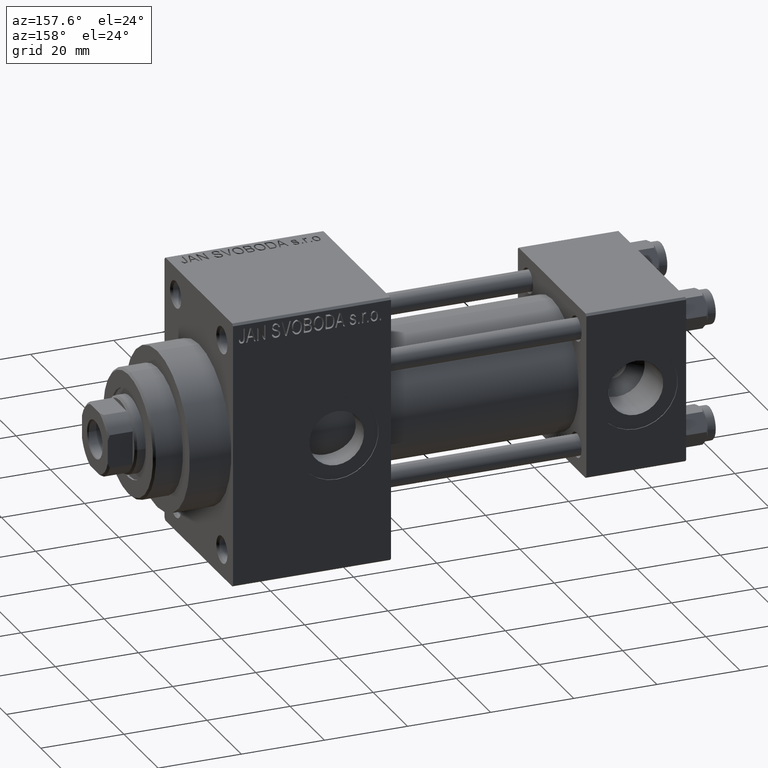
[diagram: clean part render]
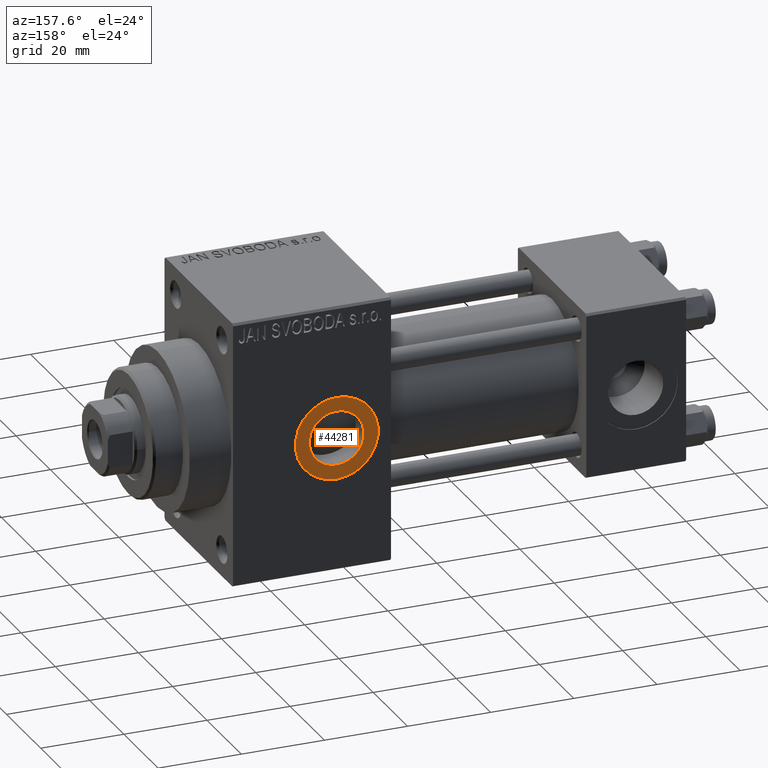
[diagram: same view with one face highlighted and labeled with its STEP entity id]
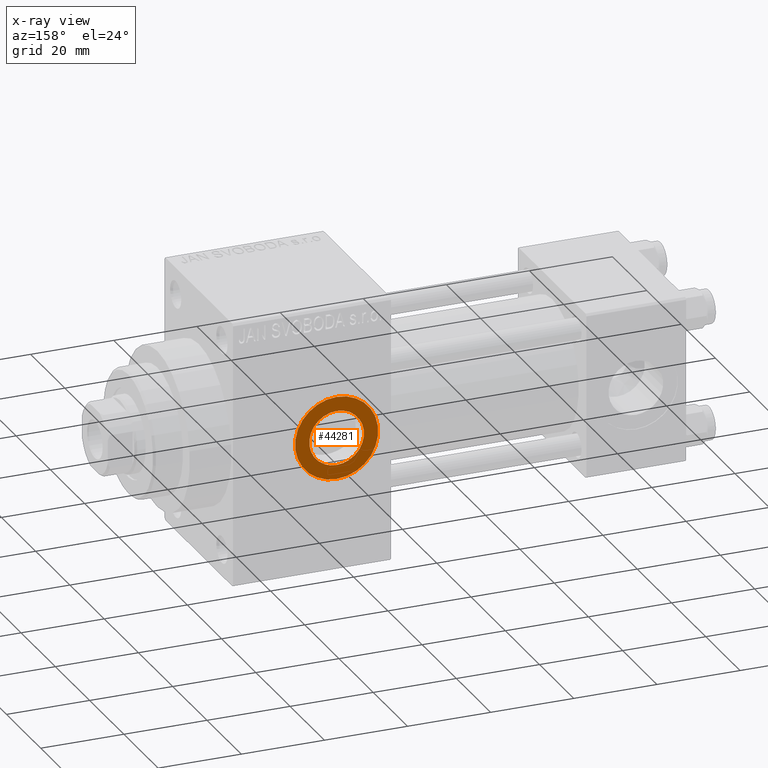
[diagram: x-ray of the same camera — body ghosted, the highlighted face saturated]
A machine part, auxiliary view. The second image highlights one B-rep face of the part: STEP entity #44281.
The next image is the same camera in x-ray: the body ghosted, the highlighted face saturated — about 0% of this face is hidden behind the body in this view.
In plain terms, the highlighted planar face has unit normal (0, 1, 0).
Its self-contained STEP definition (entity closure, byte-faithful):
#504 = CARTESIAN_POINT ( 'NONE',  ( 84.00000000000000000, 19.80000000000000071, -10.00000000000153300 ) ) ;
#846 = CARTESIAN_POINT ( 'NONE',  ( 84.00000000000000000, 19.80000000000000071, 0.000000000000000000 ) ) ;
#1001 = CARTESIAN_POINT ( 'NONE',  ( 84.00000000000000000, 19.80000000000000071, 0.000000000000000000 ) ) ;
#7705 = CARTESIAN_POINT ( 'NONE',  ( 84.00000000000000000, 19.80000000000000071, 6.580000000001541061 ) ) ;
#9130 = AXIS2_PLACEMENT_3D ( 'NONE', #21514, #40474, #36535 ) ;
#9372 = VERTEX_POINT ( 'NONE', #38943 ) ;
#10048 = VERTEX_POINT ( 'NONE', #7705 ) ;
#12161 = DIRECTION ( 'NONE',  ( 0.000000000000000000, 0.000000000000000000, 1.000000000000000000 ) ) ;
#12317 = DIRECTION ( 'NONE',  ( 0.000000000000000000, 0.000000000000000000, 1.000000000000000000 ) ) ;
#12389 = EDGE_LOOP ( 'NONE', ( #14177, #23868 ) ) ;
#14177 = ORIENTED_EDGE ( 'NONE', *, *, #18006, .F. ) ;
#15864 = DIRECTION ( 'NONE',  ( 0.000000000000000000, 1.000000000000000000, 0.000000000000000000 ) ) ;
#16266 = DIRECTION ( 'NONE',  ( 0.000000000000000000, 1.000000000000000000, 0.000000000000000000 ) ) ;
#17242 = CIRCLE ( 'NONE', #44765, 6.580000000001541061 ) ;
#18006 = EDGE_CURVE ( 'NONE', #10048, #9372, #17242, .T. ) ;
#18329 = PLANE ( 'NONE',  #36558 ) ;
#21514 = CARTESIAN_POINT ( 'NONE',  ( 84.00000000000000000, 19.80000000000000071, 0.000000000000000000 ) ) ;
#22361 = VERTEX_POINT ( 'NONE', #504 ) ;
#22495 = CARTESIAN_POINT ( 'NONE',  ( 84.00000000000000000, 19.80000000000000071, 0.000000000000000000 ) ) ;
#23296 = CIRCLE ( 'NONE', #9130, 10.00000000000153300 ) ;
#23868 = ORIENTED_EDGE ( 'NONE', *, *, #34470, .F. ) ;
#23912 = CARTESIAN_POINT ( 'NONE',  ( 84.00000000000000000, 19.80000000000000071, 0.000000000000000000 ) ) ;
#24507 = AXIS2_PLACEMENT_3D ( 'NONE', #846, #15864, #12161 ) ;
#24653 = ORIENTED_EDGE ( 'NONE', *, *, #47558, .T. ) ;
#25695 = DIRECTION ( 'NONE',  ( 0.000000000000000000, 1.000000000000000000, 0.000000000000000000 ) ) ;
#27741 = VERTEX_POINT ( 'NONE', #35549 ) ;
#28729 = EDGE_CURVE ( 'NONE', #22361, #27741, #41832, .T. ) ;
#29386 = FACE_BOUND ( 'NONE', #12389, .T. ) ;
#30092 = EDGE_LOOP ( 'NONE', ( #24653, #48018 ) ) ;
#31019 = CIRCLE ( 'NONE', #48333, 6.580000000001541061 ) ;
#31051 = DIRECTION ( 'NONE',  ( 0.000000000000000000, 0.000000000000000000, 1.000000000000000000 ) ) ;
#34279 = DIRECTION ( 'NONE',  ( 0.000000000000000000, 1.000000000000000000, 0.000000000000000000 ) ) ;
#34470 = EDGE_CURVE ( 'NONE', #9372, #10048, #31019, .T. ) ;
#35549 = CARTESIAN_POINT ( 'NONE',  ( 84.00000000000000000, 19.80000000000000071, 10.00000000000153300 ) ) ;
#36535 = DIRECTION ( 'NONE',  ( 0.000000000000000000, 0.000000000000000000, 1.000000000000000000 ) ) ;
#36558 = AXIS2_PLACEMENT_3D ( 'NONE', #22495, #25695, #44664 ) ;
#38943 = CARTESIAN_POINT ( 'NONE',  ( 84.00000000000000000, 19.80000000000000071, -6.580000000001541061 ) ) ;
#40474 = DIRECTION ( 'NONE',  ( 0.000000000000000000, 1.000000000000000000, 0.000000000000000000 ) ) ;
#41832 = CIRCLE ( 'NONE', #24507, 10.00000000000153300 ) ;
#44281 = ADVANCED_FACE ( 'NONE', ( #29386, #44908 ), #18329, .T. ) ;
#44664 = DIRECTION ( 'NONE',  ( 0.000000000000000000, -0.000000000000000000, 1.000000000000000000 ) ) ;
#44765 = AXIS2_PLACEMENT_3D ( 'NONE', #1001, #16266, #12317 ) ;
#44908 = FACE_OUTER_BOUND ( 'NONE', #30092, .T. ) ;
#47558 = EDGE_CURVE ( 'NONE', #27741, #22361, #23296, .T. ) ;
#48018 = ORIENTED_EDGE ( 'NONE', *, *, #28729, .T. ) ;
#48333 = AXIS2_PLACEMENT_3D ( 'NONE', #23912, #34279, #31051 ) ;